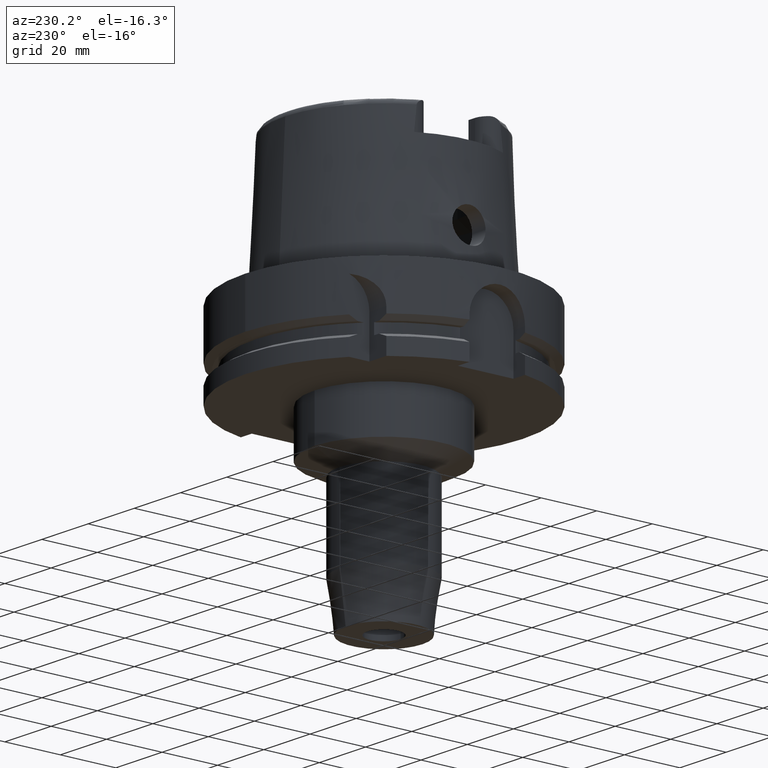
[diagram: clean part render]
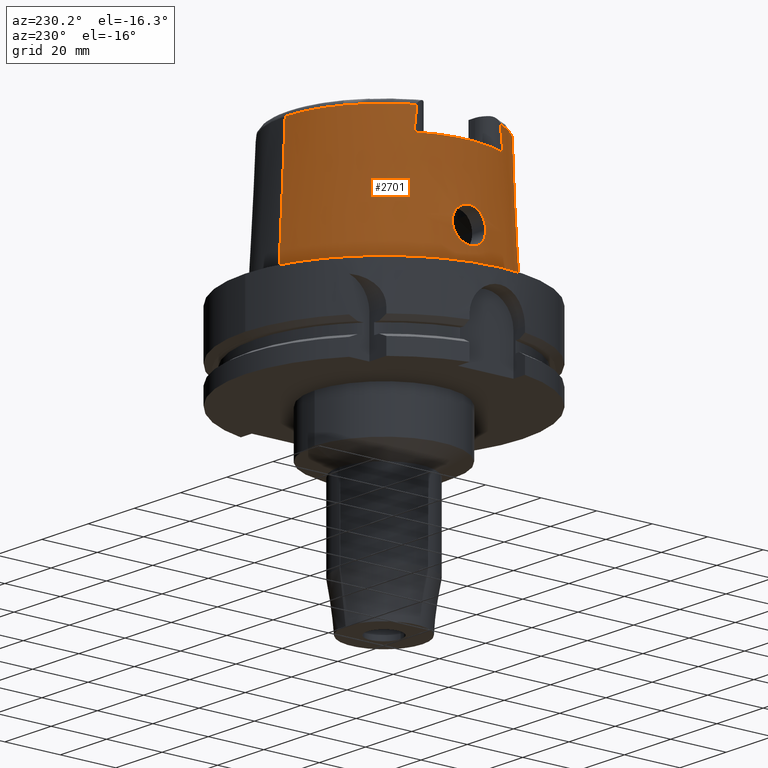
[diagram: same view with one face highlighted and labeled with its STEP entity id]
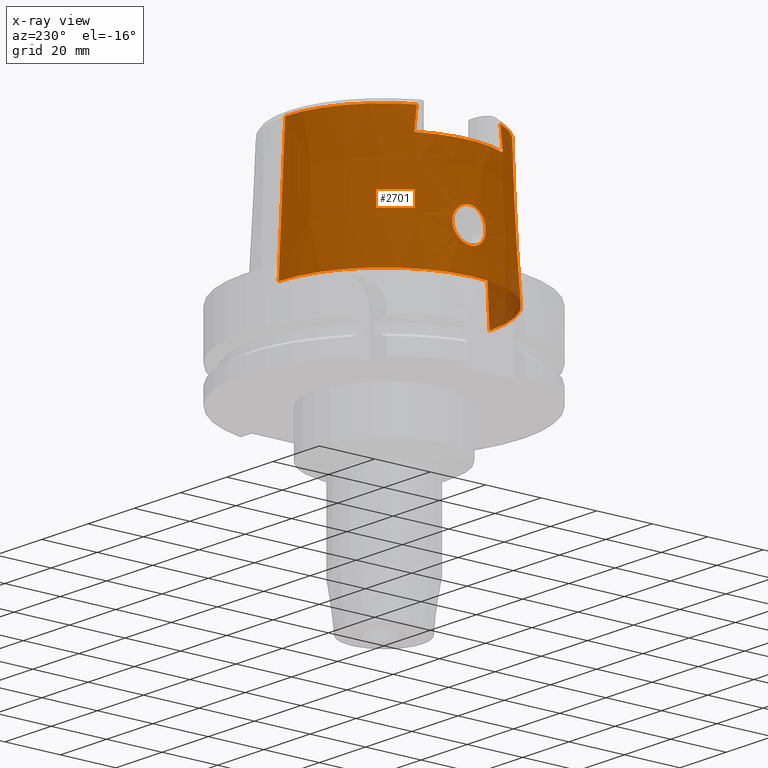
[diagram: x-ray of the same camera — body ghosted, the highlighted face saturated]
A machine part, auxiliary view. The second image highlights one B-rep face of the part: STEP entity #2701.
The next image is the same camera in x-ray: the body ghosted, the highlighted face saturated — about 4% of this face is hidden behind the body in this view.
In plain terms, the highlighted conical surface has half-angle 2.862 deg.
Its self-contained STEP definition (entity closure, byte-faithful):
#130=CARTESIAN_POINT('',(0.E0,0.E0,4.E1));
#131=DIRECTION('',(0.E0,0.E0,-1.E0));
#132=DIRECTION('',(-8.958345712660E-1,-4.443876921391E-1,0.E0));
#133=AXIS2_PLACEMENT_3D('',#130,#131,#132);
#237=CARTESIAN_POINT('',(-3.224999491821E1,-1.506448487458E1,4.809973205637E1));
#265=CARTESIAN_POINT('',(0.E0,0.E0,4.809987853799E1));
#266=DIRECTION('',(0.E0,0.E0,-1.E0));
#267=DIRECTION('',(0.E0,-1.E0,0.E0));
#268=AXIS2_PLACEMENT_3D('',#265,#266,#267);
#273=CARTESIAN_POINT('',(-3.224999876012E1,-1.599794043148E1,4.E1));
#274=CARTESIAN_POINT('',(-3.224999876012E1,-1.589618560063E1,4.090434232027E1));
#275=CARTESIAN_POINT('',(-3.224999990104E1,-1.569149929017E1,4.271014761029E1));
#276=CARTESIAN_POINT('',(-3.225000220619E1,-1.538028256087E1,4.541006256668E1));
#277=CARTESIAN_POINT('',(-3.224999491821E1,-1.517027178031E1,4.720433999090E1));
#278=CARTESIAN_POINT('',(-3.224999491821E1,-1.506448487458E1,4.809973205637E1));
#283=DIRECTION('',(5.154182075151E-5,-4.993927430816E-2,-9.987522546783E-1));
#284=VECTOR('',#283,4.815996991514E1);
#285=CARTESIAN_POINT('',(-2.482252536761E-3,-3.559494263425E1,
4.809987853799E1));
#286=LINE('',#285,#284);
#290=CARTESIAN_POINT('',(-3.225000136841E1,1.506443226681E1,4.809991935131E1));
#291=CARTESIAN_POINT('',(-3.225000136841E1,1.517024629694E1,4.720430016472E1));
#292=CARTESIAN_POINT('',(-3.225000007421E1,1.538032523284E1,4.541024587092E1));
#293=CARTESIAN_POINT('',(-3.224999768767E1,1.569154927003E1,4.271027466005E1));
#294=CARTESIAN_POINT('',(-3.225000534596E1,1.589614940559E1,4.090439636549E1));
#295=CARTESIAN_POINT('',(-3.225000534596E1,1.599791057085E1,4.E1));
#300=CARTESIAN_POINT('',(-3.755000165825E1,1.571614468377E-13,9.E0));
#301=CARTESIAN_POINT('',(-3.755000165825E1,-4.747574626590E-1,9.E0));
#302=CARTESIAN_POINT('',(-3.752591894270E1,-1.428953200002E0,9.113741840106E0));
#303=CARTESIAN_POINT('',(-3.742284262115E1,-2.788913122427E0,9.620344981857E0));
#304=CARTESIAN_POINT('',(-3.726790979075E1,-4.006338065853E0,1.045584717830E1));
#305=CARTESIAN_POINT('',(-3.709639326249E1,-4.962491109784E0,1.152543482404E1));
#306=CARTESIAN_POINT('',(-3.692881298478E1,-5.658429781955E0,1.282978200914E1));
#307=CARTESIAN_POINT('',(-3.679920863965E1,-6.013224900044E0,1.425559722843E1));
#308=CARTESIAN_POINT('',(-3.672460643697E1,-6.015380848917E0,1.572039459803E1));
#309=CARTESIAN_POINT('',(-3.670907408527E1,-5.671542819810E0,1.712928327229E1));
#310=CARTESIAN_POINT('',(-3.674328730750E1,-4.999874742348E0,1.842003238147E1));
#311=CARTESIAN_POINT('',(-3.680808348051E1,-4.046697380382E0,1.950944491207E1));
#312=CARTESIAN_POINT('',(-3.688127409436E1,-2.832050852857E0,2.035825263571E1));
#313=CARTESIAN_POINT('',(-3.693653487247E1,-1.452378250841E0,2.088273393998E1));
#314=CARTESIAN_POINT('',(-3.694998175923E1,-4.830903647298E-1,2.1E1));
#315=CARTESIAN_POINT('',(-3.694998175923E1,0.E0,2.1E1));
#320=CARTESIAN_POINT('',(-3.694998175923E1,0.E0,2.1E1));
#321=CARTESIAN_POINT('',(-3.694998175923E1,4.801122084632E-1,2.1E1));
#322=CARTESIAN_POINT('',(-3.693669497493E1,1.443102130570E0,2.088407304069E1));
#323=CARTESIAN_POINT('',(-3.688221139948E1,2.812548508073E0,2.036746989593E1));
#324=CARTESIAN_POINT('',(-3.680964986305E1,4.023128348557E0,1.952960350652E1));
#325=CARTESIAN_POINT('',(-3.674464750155E1,4.979067993651E0,1.845012059080E1));
#326=CARTESIAN_POINT('',(-3.670930969313E1,5.659940119726E0,1.716086445832E1));
#327=CARTESIAN_POINT('',(-3.672368971164E1,6.010723523751E0,1.575372606081E1));
#328=CARTESIAN_POINT('',(-3.679605372018E1,6.017298868580E0,1.430442019072E1));
#329=CARTESIAN_POINT('',(-3.692154278870E1,5.682360037425E0,1.289829074339E1));
#330=CARTESIAN_POINT('',(-3.708639041450E1,5.010329807732E0,1.159400749335E1));
#331=CARTESIAN_POINT('',(-3.726072400215E1,4.054894660032E0,1.049608376596E1));
#332=CARTESIAN_POINT('',(-3.742018610788E1,2.819864437329E0,9.633443165434E0));
#333=CARTESIAN_POINT('',(-3.752610469373E1,1.431953890791E0,9.112790056203E0));
#334=CARTESIAN_POINT('',(-3.755000165825E1,4.738444714111E-1,9.E0));
#335=CARTESIAN_POINT('',(-3.755000165825E1,1.571614468377E-13,9.E0));
#350=DIRECTION('',(-5.154182075159E-5,4.993927430816E-2,-9.987522546783E-1));
#351=VECTOR('',#350,4.815996991514E1);
#352=CARTESIAN_POINT('',(2.482252536765E-3,3.559494263425E1,4.809987853799E1));
#353=LINE('',#352,#351);
#1942=CARTESIAN_POINT('',(0.E0,0.E0,1.023181539495E-12));
#1943=DIRECTION('',(0.E0,0.E0,1.E0));
#1944=DIRECTION('',(0.E0,1.E0,0.E0));
#1945=AXIS2_PLACEMENT_3D('',#1942,#1943,#1944);
#2134=CARTESIAN_POINT('',(-3.225000136841E1,1.506443226681E1,4.809991935131E1));
#2139=CARTESIAN_POINT('',(0.E0,0.E0,4.809987853799E1));
#2140=DIRECTION('',(0.E0,0.E0,-1.E0));
#2141=DIRECTION('',(-9.060276961631E-1,4.232183996300E-1,0.E0));
#2142=AXIS2_PLACEMENT_3D('',#2139,#2140,#2141);
#2227=CARTESIAN_POINT('',(-3.224999876012E1,-1.599794043148E1,4.E1));
#2228=VERTEX_POINT('',#2227);
#2229=CARTESIAN_POINT('',(-3.224999999999E1,1.599793480981E1,4.E1));
#2230=VERTEX_POINT('',#2229);
#2232=VERTEX_POINT('',#2134);
#2233=CARTESIAN_POINT('',(0.E0,3.559494289391E1,4.809987853799E1));
#2234=VERTEX_POINT('',#2233);
#2238=VERTEX_POINT('',#237);
#2241=CARTESIAN_POINT('',(1.065814103640E-14,-3.559494289391E1,
4.809987853799E1));
#2242=VERTEX_POINT('',#2241);
#2243=CARTESIAN_POINT('',(0.E0,-3.800001658252E1,6.892264536873E-13));
#2244=VERTEX_POINT('',#2243);
#2245=CARTESIAN_POINT('',(0.E0,3.800001658252E1,1.023181539495E-12));
#2246=VERTEX_POINT('',#2245);
#2247=VERTEX_POINT('',#300);
#2248=VERTEX_POINT('',#315);
#2675=CARTESIAN_POINT('',(0.E0,0.E0,2.404993926900E1));
#2676=DIRECTION('',(0.E0,0.E0,-1.E0));
#2677=DIRECTION('',(0.E0,-1.E0,0.E0));
#2678=AXIS2_PLACEMENT_3D('',#2675,#2676,#2677);
#2679=CONICAL_SURFACE('',#2678,3.679747973821E1,2.8625E0);
#2680=ORIENTED_EDGE('',*,*,#2584,.F.);
#2681=ORIENTED_EDGE('',*,*,#2667,.T.);
#2682=ORIENTED_EDGE('',*,*,#2657,.F.);
#2684=ORIENTED_EDGE('',*,*,#2683,.T.);
#2686=ORIENTED_EDGE('',*,*,#2685,.F.);
#2688=ORIENTED_EDGE('',*,*,#2687,.F.);
#2690=ORIENTED_EDGE('',*,*,#2689,.F.);
#2692=ORIENTED_EDGE('',*,*,#2691,.T.);
#2693=EDGE_LOOP('',(#2680,#2681,#2682,#2684,#2686,#2688,#2690,#2692));
#2694=FACE_OUTER_BOUND('',#2693,.F.);
#2696=ORIENTED_EDGE('',*,*,#2695,.T.);
#2698=ORIENTED_EDGE('',*,*,#2697,.T.);
#2699=EDGE_LOOP('',(#2696,#2698));
#2700=FACE_BOUND('',#2699,.F.);
#134=CIRCLE('',#133,3.599995025244E1);
#269=CIRCLE('',#268,3.559494289391E1);
#279=B_SPLINE_CURVE_WITH_KNOTS('',3,(#273,#274,#275,#276,#277,#278),
.UNSPECIFIED.,.F.,.F.,(4,1,1,4),(0.E0,3.333333333333E-1,6.666666666667E-1,1.E0),
.UNSPECIFIED.);
#296=B_SPLINE_CURVE_WITH_KNOTS('',3,(#290,#291,#292,#293,#294,#295),
.UNSPECIFIED.,.F.,.F.,(4,1,1,4),(0.E0,3.333333333333E-1,6.666666666667E-1,1.E0),
.UNSPECIFIED.);
#316=B_SPLINE_CURVE_WITH_KNOTS('',3,(#300,#301,#302,#303,#304,#305,#306,#307,
#308,#309,#310,#311,#312,#313,#314,#315),.UNSPECIFIED.,.F.,.F.,(4,1,1,1,1,1,1,1,
1,1,1,1,1,4),(0.E0,7.692307692308E-2,1.538461538462E-1,2.307692307692E-1,
3.076923076923E-1,3.846153846154E-1,4.615384615385E-1,5.384615384615E-1,
6.153846153846E-1,6.923076923077E-1,7.692307692308E-1,8.461538461538E-1,
9.230769230769E-1,1.E0),.UNSPECIFIED.);
#336=B_SPLINE_CURVE_WITH_KNOTS('',3,(#320,#321,#322,#323,#324,#325,#326,#327,
#328,#329,#330,#331,#332,#333,#334,#335),.UNSPECIFIED.,.F.,.F.,(4,1,1,1,1,1,1,1,
1,1,1,1,1,4),(0.E0,7.692307692308E-2,1.538461538462E-1,2.307692307692E-1,
3.076923076923E-1,3.846153846154E-1,4.615384615385E-1,5.384615384615E-1,
6.153846153846E-1,6.923076923077E-1,7.692307692308E-1,8.461538461538E-1,
9.230769230769E-1,1.E0),.UNSPECIFIED.);
#1946=CIRCLE('',#1945,3.800001658252E1);
#2143=CIRCLE('',#2142,3.559494289391E1);
#2584=EDGE_CURVE('',#2228,#2230,#134,.T.);
#2657=EDGE_CURVE('',#2242,#2238,#269,.T.);
#2667=EDGE_CURVE('',#2228,#2238,#279,.T.);
#2683=EDGE_CURVE('',#2242,#2244,#286,.T.);
#2685=EDGE_CURVE('',#2246,#2244,#1946,.T.);
#2687=EDGE_CURVE('',#2234,#2246,#353,.T.);
#2689=EDGE_CURVE('',#2232,#2234,#2143,.T.);
#2691=EDGE_CURVE('',#2232,#2230,#296,.T.);
#2695=EDGE_CURVE('',#2247,#2248,#316,.T.);
#2697=EDGE_CURVE('',#2248,#2247,#336,.T.);
#2701=ADVANCED_FACE('',(#2694,#2700),#2679,.T.);